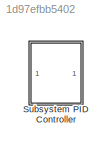
MODEL slx_1d97efbb5402
KIND model
CONFIG AbsTol = auto
CONFIG EnableMultiTasking = off
CONFIG FixedStep = auto
CONFIG MaxStep = auto
CONFIG MinStep = auto
CONFIG RelTol = 1e-3
CONFIG SampleTimeConstraint = Unconstrained
CONFIG SolverName = VariableStepAuto
CONFIG StartTime = 0.0
CONFIG StopTime = 10.0
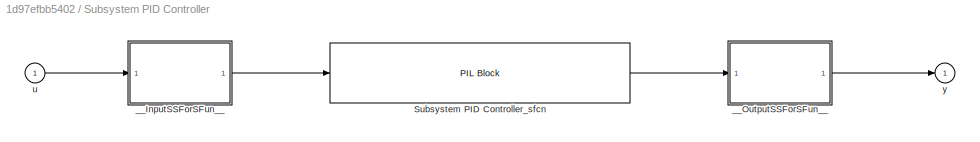
BLOCK [SubSystem] Subsystem PID Controller
  DialogController = pil_create_dialog
  LoadFcn = try\n   if ~strcmp(rtw.pil.getPILVersion, '9.11 (R2021b)_15')\n      set_param(gcb, 'DialogController', '');\n      set_param(gcb, 'DialogControllerArgs', '');\n   end\ncatch e\n      set_param(gcb, 'DialogController', '');\n      set_param(gcb, 'DialogControllerArgs', '');\nend
  Ports = [1, 1]
  RequestExecContextInheritance = off
BLOCK [Reference] Subsystem PID Controller/Subsystem PID Controller_sfcn  REF=pil_lib/PIL Block
  Ports = [1, 1]
  SourceBlock = pil_lib/PIL Block
  SourceProductBaseCode = RT
  SourceType = XILBlock
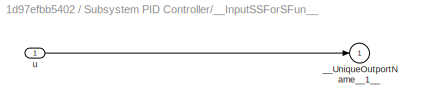
BLOCK [SubSystem] Subsystem PID Controller/__InputSSForSFun__
  PermitHierarchicalResolution = ExplicitOnly
  Ports = [1, 1]
  RequestExecContextInheritance = off
BLOCK [Outport] Subsystem PID Controller/__InputSSForSFun__/__UniqueOutportName__1__
BLOCK [Inport] Subsystem PID Controller/__InputSSForSFun__/u
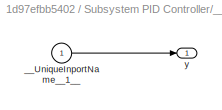
BLOCK [SubSystem] Subsystem PID Controller/__OutputSSForSFun__
  PermitHierarchicalResolution = ExplicitOnly
  Ports = [1, 1]
  RequestExecContextInheritance = off
BLOCK [Inport] Subsystem PID Controller/__OutputSSForSFun__/__UniqueInportName__1__
BLOCK [Outport] Subsystem PID Controller/__OutputSSForSFun__/y
BLOCK [Inport] Subsystem PID Controller/u
BLOCK [Outport] Subsystem PID Controller/y
LINE Subsystem PID Controller/Subsystem PID Controller_sfcn:1 -> Subsystem PID Controller/__OutputSSForSFun__:1
LINE Subsystem PID Controller/__InputSSForSFun__/u:1 -> Subsystem PID Controller/__InputSSForSFun__/__UniqueOutportName__1__:1
LINE Subsystem PID Controller/__InputSSForSFun__:1 -> Subsystem PID Controller/Subsystem PID Controller_sfcn:1
LINE Subsystem PID Controller/__OutputSSForSFun__/__UniqueInportName__1__:1 -> Subsystem PID Controller/__OutputSSForSFun__/y:1
LINE Subsystem PID Controller/__OutputSSForSFun__:1 -> Subsystem PID Controller/y:1
LINE Subsystem PID Controller/u:1 -> Subsystem PID Controller/__InputSSForSFun__:1
